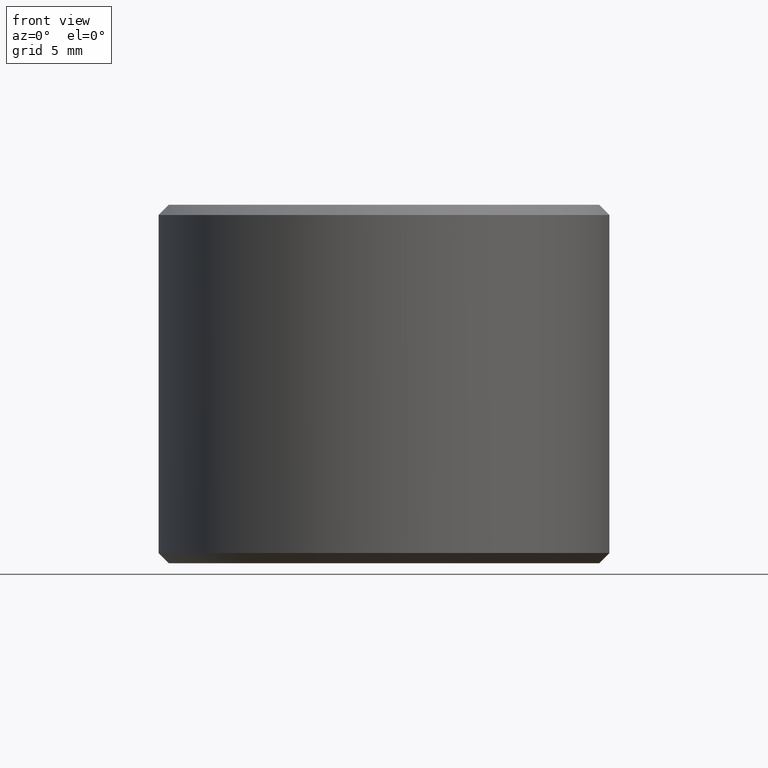
[diagram: clean part render]
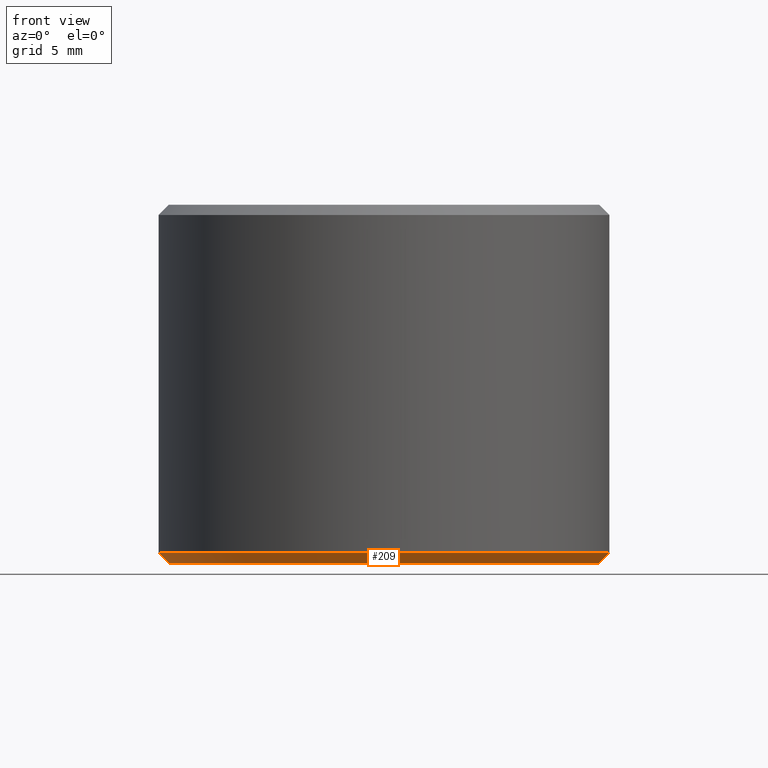
[diagram: same view with one face highlighted and labeled with its STEP entity id]
A machine part, front view. The second image highlights one B-rep face of the part: STEP entity #209.
In plain terms, the highlighted conical surface has half-angle 45 deg.
Its self-contained STEP definition (entity closure, byte-faithful):
#6 = ORIENTED_EDGE ( 'NONE', *, *, #113, .T. ) ;
#23 = DIRECTION ( 'NONE',  ( -0.7071067811865474600, 8.659560562354931600E-017, 0.7071067811865475700 ) ) ;
#25 = AXIS2_PLACEMENT_3D ( 'NONE', #180, #100, #320 ) ;
#26 = VERTEX_POINT ( 'NONE', #342 ) ;
#33 = CARTESIAN_POINT ( 'NONE',  ( -10.50000000000078700, 1.316495309083456900E-015, 4.440892098500626200E-013 ) ) ;
#36 = VERTEX_POINT ( 'NONE', #75 ) ;
#48 = ORIENTED_EDGE ( 'NONE', *, *, #62, .F. ) ;
#59 = CARTESIAN_POINT ( 'NONE',  ( 10.50000000000078700, 0.0000000000000000000, 4.440892098500626200E-013 ) ) ;
#62 = EDGE_CURVE ( 'NONE', #116, #36, #68, .T. ) ;
#64 = VECTOR ( 'NONE', #297, 1000.000000000000000 ) ;
#68 = LINE ( 'NONE', #129, #325 ) ;
#75 = CARTESIAN_POINT ( 'NONE',  ( -11.00000000000006600, 1.347111479062096500E-015, 0.4999999999997228900 ) ) ;
#82 = DIRECTION ( 'NONE',  ( -0.0000000000000000000, -0.0000000000000000000, 1.000000000000000000 ) ) ;
#84 = CIRCLE ( 'NONE', #227, 10.50000000000078700 ) ;
#100 = DIRECTION ( 'NONE',  ( -0.0000000000000000000, -0.0000000000000000000, 1.000000000000000000 ) ) ;
#106 = DIRECTION ( 'NONE',  ( 1.000000000000000000, 0.0000000000000000000, 0.0000000000000000000 ) ) ;
#113 = EDGE_CURVE ( 'NONE', #26, #290, #188, .T. ) ;
#116 = VERTEX_POINT ( 'NONE', #33 ) ;
#122 = CIRCLE ( 'NONE', #25, 11.00000000000006600 ) ;
#129 = CARTESIAN_POINT ( 'NONE',  ( -10.50000000000078700, 1.285879139104817300E-015, 4.440892098500626200E-013 ) ) ;
#130 = ORIENTED_EDGE ( 'NONE', *, *, #164, .T. ) ;
#139 = CARTESIAN_POINT ( 'NONE',  ( 0.0000000000000000000, 0.0000000000000000000, 4.440892098500626200E-013 ) ) ;
#164 = EDGE_CURVE ( 'NONE', #116, #26, #84, .T. ) ;
#180 = CARTESIAN_POINT ( 'NONE',  ( 0.0000000000000000000, 0.0000000000000000000, 0.4999999999997228900 ) ) ;
#186 = EDGE_LOOP ( 'NONE', ( #48, #130, #6, #202 ) ) ;
#188 = LINE ( 'NONE', #59, #64 ) ;
#201 = CONICAL_SURFACE ( 'NONE', #279, 10.50000000000078700, 0.7853981633974482800 ) ;
#202 = ORIENTED_EDGE ( 'NONE', *, *, #246, .F. ) ;
#209 = ADVANCED_FACE ( 'NONE', ( #250 ), #201, .T. ) ;
#213 = DIRECTION ( 'NONE',  ( -0.0000000000000000000, -0.0000000000000000000, 1.000000000000000000 ) ) ;
#227 = AXIS2_PLACEMENT_3D ( 'NONE', #347, #213, #277 ) ;
#246 = EDGE_CURVE ( 'NONE', #36, #290, #122, .T. ) ;
#250 = FACE_OUTER_BOUND ( 'NONE', #186, .T. ) ;
#261 = CARTESIAN_POINT ( 'NONE',  ( 11.00000000000006600, 0.0000000000000000000, 0.4999999999997228900 ) ) ;
#277 = DIRECTION ( 'NONE',  ( 1.000000000000000000, 0.0000000000000000000, 0.0000000000000000000 ) ) ;
#279 = AXIS2_PLACEMENT_3D ( 'NONE', #139, #82, #106 ) ;
#290 = VERTEX_POINT ( 'NONE', #261 ) ;
#297 = DIRECTION ( 'NONE',  ( 0.7071067811865474600, 0.0000000000000000000, 0.7071067811865475700 ) ) ;
#320 = DIRECTION ( 'NONE',  ( 1.000000000000000000, 0.0000000000000000000, 0.0000000000000000000 ) ) ;
#325 = VECTOR ( 'NONE', #23, 1000.000000000000000 ) ;
#342 = CARTESIAN_POINT ( 'NONE',  ( 10.50000000000078700, 0.0000000000000000000, 4.440892098500626200E-013 ) ) ;
#347 = CARTESIAN_POINT ( 'NONE',  ( 0.0000000000000000000, 0.0000000000000000000, 4.440892098500626200E-013 ) ) ;